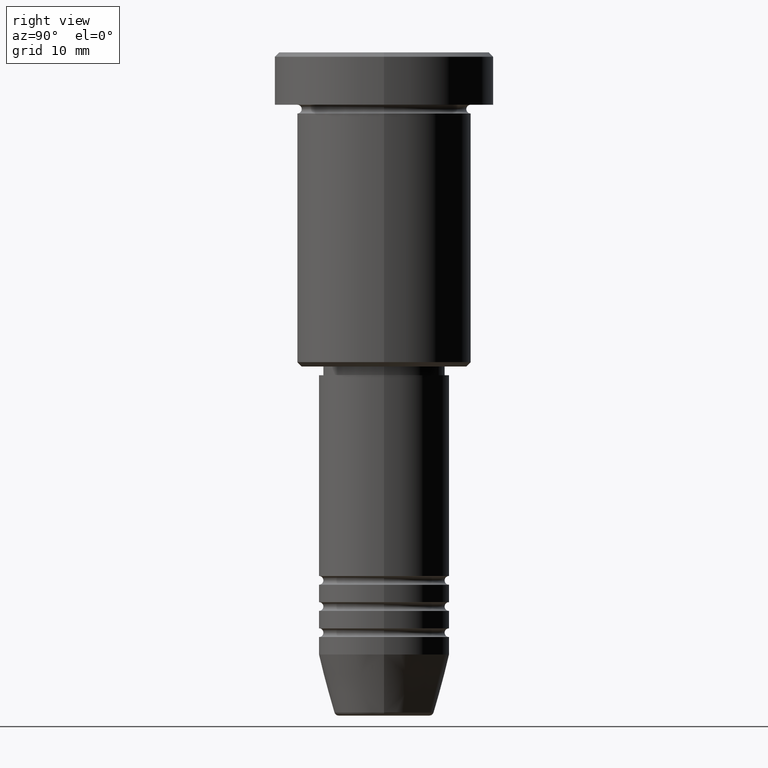
[diagram: clean part render]
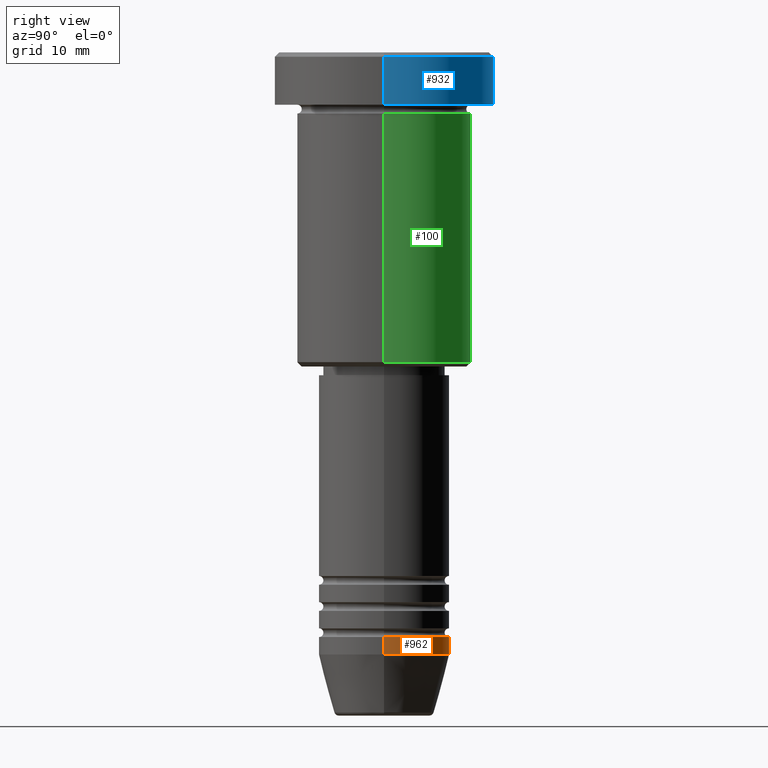
[diagram: same view with three faces highlighted in distinct colors, each labeled with its STEP entity id]
A machine part, right view with three faces highlighted in distinct colors.
Their STEP definitions:

[orange] entity #962 — the highlighted cylindrical surface (partial cylindrical patch) has radius 7.5 mm, axis along (-0, -0, 1).
#53 = FACE_OUTER_BOUND ( 'NONE', #652, .T. ) ;
#96 = CIRCLE ( 'NONE', #803, 7.500000000000000000 ) ;
#150 = VERTEX_POINT ( 'NONE', #1065 ) ;
#156 = CYLINDRICAL_SURFACE ( 'NONE', #402, 7.500000000000000000 ) ;
#214 = ORIENTED_EDGE ( 'NONE', *, *, #786, .F. ) ;
#295 = ORIENTED_EDGE ( 'NONE', *, *, #533, .T. ) ;
#298 = ORIENTED_EDGE ( 'NONE', *, *, #596, .F. ) ;
#303 = CIRCLE ( 'NONE', #453, 7.500000000000000000 ) ;
#384 = DIRECTION ( 'NONE',  ( -0.000000000000000000, -0.000000000000000000, 1.000000000000000000 ) ) ;
#390 = CARTESIAN_POINT ( 'NONE',  ( 7.500000000000000000, 0.000000000000000000, 0.000000000000000000 ) ) ;
#402 = AXIS2_PLACEMENT_3D ( 'NONE', #438, #974, #808 ) ;
#408 = DIRECTION ( 'NONE',  ( 1.000000000000000000, 0.000000000000000000, 0.000000000000000000 ) ) ;
#426 = VERTEX_POINT ( 'NONE', #638 ) ;
#438 = CARTESIAN_POINT ( 'NONE',  ( 0.000000000000000000, 0.000000000000000000, 0.000000000000000000 ) ) ;
#453 = AXIS2_PLACEMENT_3D ( 'NONE', #664, #760, #408 ) ;
#480 = LINE ( 'NONE', #390, #1131 ) ;
#533 = EDGE_CURVE ( 'NONE', #802, #426, #1004, .T. ) ;
#559 = DIRECTION ( 'NONE',  ( -0.000000000000000000, -0.000000000000000000, 1.000000000000000000 ) ) ;
#573 = CARTESIAN_POINT ( 'NONE',  ( 0.000000000000000000, 0.000000000000000000, -67.00000000000000000 ) ) ;
#596 = EDGE_CURVE ( 'NONE', #150, #1081, #480, .T. ) ;
#632 = CARTESIAN_POINT ( 'NONE',  ( -7.500000000000000000, 9.184850993605147944E-16, 0.000000000000000000 ) ) ;
#638 = CARTESIAN_POINT ( 'NONE',  ( -7.500000000000000000, 9.184850993605147944E-16, -67.00000000000000000 ) ) ;
#652 = EDGE_LOOP ( 'NONE', ( #735, #295, #214, #298 ) ) ;
#664 = CARTESIAN_POINT ( 'NONE',  ( 0.000000000000000000, 0.000000000000000000, -69.00000000000000000 ) ) ;
#735 = ORIENTED_EDGE ( 'NONE', *, *, #765, .T. ) ;
#760 = DIRECTION ( 'NONE',  ( -0.000000000000000000, -0.000000000000000000, 1.000000000000000000 ) ) ;
#765 = EDGE_CURVE ( 'NONE', #150, #802, #303, .T. ) ;
#786 = EDGE_CURVE ( 'NONE', #1081, #426, #96, .T. ) ;
#802 = VERTEX_POINT ( 'NONE', #1112 ) ;
#803 = AXIS2_PLACEMENT_3D ( 'NONE', #573, #384, #1122 ) ;
#808 = DIRECTION ( 'NONE',  ( 1.000000000000000000, 0.000000000000000000, 0.000000000000000000 ) ) ;
#871 = VECTOR ( 'NONE', #559, 1000.000000000000000 ) ;
#930 = DIRECTION ( 'NONE',  ( -0.000000000000000000, -0.000000000000000000, 1.000000000000000000 ) ) ;
#962 = ADVANCED_FACE ( 'NONE', ( #53 ), #156, .T. ) ;
#974 = DIRECTION ( 'NONE',  ( -0.000000000000000000, -0.000000000000000000, 1.000000000000000000 ) ) ;
#1004 = LINE ( 'NONE', #632, #871 ) ;
#1065 = CARTESIAN_POINT ( 'NONE',  ( 7.500000000000000000, 0.000000000000000000, -69.00000000000000000 ) ) ;
#1081 = VERTEX_POINT ( 'NONE', #1173 ) ;
#1112 = CARTESIAN_POINT ( 'NONE',  ( -7.500000000000000000, 9.184850993605147944E-16, -69.00000000000000000 ) ) ;
#1122 = DIRECTION ( 'NONE',  ( 1.000000000000000000, 0.000000000000000000, 0.000000000000000000 ) ) ;
#1131 = VECTOR ( 'NONE', #930, 1000.000000000000000 ) ;
#1173 = CARTESIAN_POINT ( 'NONE',  ( 7.500000000000000000, 0.000000000000000000, -67.00000000000000000 ) ) ;

[blue] entity #932 — the highlighted cylindrical surface (partial cylindrical patch) has radius 12.5 mm, axis along (-0, -0, 1).
#34 = VERTEX_POINT ( 'NONE', #1003 ) ;
#47 = ORIENTED_EDGE ( 'NONE', *, *, #382, .F. ) ;
#62 = CARTESIAN_POINT ( 'NONE',  ( 12.50000000000000000, 0.000000000000000000, 0.000000000000000000 ) ) ;
#66 = CARTESIAN_POINT ( 'NONE',  ( -12.50000000000000000, 1.530808498934191521E-15, -0.4999999999999987232 ) ) ;
#148 = CARTESIAN_POINT ( 'NONE',  ( -12.50000000000000000, 1.530808498934191521E-15, 0.000000000000000000 ) ) ;
#177 = EDGE_CURVE ( 'NONE', #34, #1006, #252, .T. ) ;
#233 = VECTOR ( 'NONE', #876, 1000.000000000000000 ) ;
#252 = LINE ( 'NONE', #148, #233 ) ;
#305 = ORIENTED_EDGE ( 'NONE', *, *, #177, .T. ) ;
#331 = DIRECTION ( 'NONE',  ( 1.000000000000000000, 0.000000000000000000, 0.000000000000000000 ) ) ;
#338 = CARTESIAN_POINT ( 'NONE',  ( 0.000000000000000000, 0.000000000000000000, -0.4999999999999987232 ) ) ;
#350 = DIRECTION ( 'NONE',  ( 1.000000000000000000, 0.000000000000000000, 0.000000000000000000 ) ) ;
#362 = EDGE_CURVE ( 'NONE', #543, #34, #561, .T. ) ;
#382 = EDGE_CURVE ( 'NONE', #543, #948, #516, .T. ) ;
#389 = EDGE_CURVE ( 'NONE', #1006, #948, #1046, .T. ) ;
#411 = CARTESIAN_POINT ( 'NONE',  ( 12.50000000000000000, 0.000000000000000000, -5.999999999999996447 ) ) ;
#412 = CYLINDRICAL_SURFACE ( 'NONE', #896, 12.50000000000000000 ) ;
#418 = FACE_OUTER_BOUND ( 'NONE', #515, .T. ) ;
#419 = ORIENTED_EDGE ( 'NONE', *, *, #362, .T. ) ;
#425 = CARTESIAN_POINT ( 'NONE',  ( 12.50000000000000000, 0.000000000000000000, -0.4999999999999987232 ) ) ;
#428 = DIRECTION ( 'NONE',  ( -0.000000000000000000, -0.000000000000000000, 1.000000000000000000 ) ) ;
#431 = DIRECTION ( 'NONE',  ( 0.000000000000000000, 0.000000000000000000, -1.000000000000000000 ) ) ;
#515 = EDGE_LOOP ( 'NONE', ( #419, #305, #944, #47 ) ) ;
#516 = LINE ( 'NONE', #62, #755 ) ;
#543 = VERTEX_POINT ( 'NONE', #411 ) ;
#561 = CIRCLE ( 'NONE', #833, 12.50000000000000000 ) ;
#608 = DIRECTION ( 'NONE',  ( -0.000000000000000000, -0.000000000000000000, 1.000000000000000000 ) ) ;
#621 = CARTESIAN_POINT ( 'NONE',  ( 0.000000000000000000, 0.000000000000000000, 0.000000000000000000 ) ) ;
#755 = VECTOR ( 'NONE', #428, 1000.000000000000000 ) ;
#833 = AXIS2_PLACEMENT_3D ( 'NONE', #1050, #608, #350 ) ;
#876 = DIRECTION ( 'NONE',  ( -0.000000000000000000, -0.000000000000000000, 1.000000000000000000 ) ) ;
#878 = DIRECTION ( 'NONE',  ( -0.000000000000000000, -0.000000000000000000, 1.000000000000000000 ) ) ;
#896 = AXIS2_PLACEMENT_3D ( 'NONE', #621, #878, #331 ) ;
#932 = ADVANCED_FACE ( 'NONE', ( #418 ), #412, .T. ) ;
#944 = ORIENTED_EDGE ( 'NONE', *, *, #389, .T. ) ;
#948 = VERTEX_POINT ( 'NONE', #425 ) ;
#968 = AXIS2_PLACEMENT_3D ( 'NONE', #338, #431, #1061 ) ;
#1003 = CARTESIAN_POINT ( 'NONE',  ( -12.50000000000000000, 1.530808498934191521E-15, -5.999999999999996447 ) ) ;
#1006 = VERTEX_POINT ( 'NONE', #66 ) ;
#1046 = CIRCLE ( 'NONE', #968, 12.50000000000000000 ) ;
#1050 = CARTESIAN_POINT ( 'NONE',  ( 0.000000000000000000, 0.000000000000000000, -5.999999999999996447 ) ) ;
#1061 = DIRECTION ( 'NONE',  ( 1.000000000000000000, 0.000000000000000000, 0.000000000000000000 ) ) ;

[green] entity #100 — the highlighted cylindrical surface (partial cylindrical patch) has radius 10 mm, axis along (-0, -0, 1).
#78 = EDGE_CURVE ( 'NONE', #888, #818, #1098, .T. ) ;
#100 = ADVANCED_FACE ( 'NONE', ( #837 ), #720, .T. ) ;
#178 = ORIENTED_EDGE ( 'NONE', *, *, #462, .T. ) ;
#183 = CARTESIAN_POINT ( 'NONE',  ( 0.000000000000000000, 0.000000000000000000, -6.999999999999996447 ) ) ;
#204 = CARTESIAN_POINT ( 'NONE',  ( 10.00000000000000000, 0.000000000000000000, -35.50000000000000711 ) ) ;
#211 = AXIS2_PLACEMENT_3D ( 'NONE', #643, #1099, #444 ) ;
#236 = VECTOR ( 'NONE', #1089, 1000.000000000000000 ) ;
#288 = LINE ( 'NONE', #922, #572 ) ;
#318 = EDGE_LOOP ( 'NONE', ( #433, #178, #744, #498 ) ) ;
#377 = DIRECTION ( 'NONE',  ( -0.000000000000000000, -0.000000000000000000, 1.000000000000000000 ) ) ;
#403 = AXIS2_PLACEMENT_3D ( 'NONE', #183, #377, #1011 ) ;
#423 = CARTESIAN_POINT ( 'NONE',  ( 0.000000000000000000, 0.000000000000000000, 0.000000000000000000 ) ) ;
#433 = ORIENTED_EDGE ( 'NONE', *, *, #496, .T. ) ;
#444 = DIRECTION ( 'NONE',  ( -1.000000000000000000, 0.000000000000000000, 0.000000000000000000 ) ) ;
#448 = EDGE_CURVE ( 'NONE', #818, #796, #494, .T. ) ;
#462 = EDGE_CURVE ( 'NONE', #923, #796, #288, .T. ) ;
#494 = CIRCLE ( 'NONE', #403, 10.00000000000000000 ) ;
#496 = EDGE_CURVE ( 'NONE', #888, #923, #782, .T. ) ;
#498 = ORIENTED_EDGE ( 'NONE', *, *, #78, .F. ) ;
#557 = CARTESIAN_POINT ( 'NONE',  ( 10.00000000000000000, 0.000000000000000000, 0.000000000000000000 ) ) ;
#572 = VECTOR ( 'NONE', #817, 1000.000000000000000 ) ;
#624 = DIRECTION ( 'NONE',  ( -0.000000000000000000, -0.000000000000000000, 1.000000000000000000 ) ) ;
#639 = AXIS2_PLACEMENT_3D ( 'NONE', #423, #624, #1069 ) ;
#643 = CARTESIAN_POINT ( 'NONE',  ( 0.000000000000000000, 0.000000000000000000, -35.50000000000000711 ) ) ;
#720 = CYLINDRICAL_SURFACE ( 'NONE', #639, 10.00000000000000000 ) ;
#744 = ORIENTED_EDGE ( 'NONE', *, *, #448, .F. ) ;
#782 = CIRCLE ( 'NONE', #211, 10.00000000000000000 ) ;
#796 = VERTEX_POINT ( 'NONE', #1118 ) ;
#817 = DIRECTION ( 'NONE',  ( -0.000000000000000000, -0.000000000000000000, 1.000000000000000000 ) ) ;
#818 = VERTEX_POINT ( 'NONE', #849 ) ;
#837 = FACE_OUTER_BOUND ( 'NONE', #318, .T. ) ;
#849 = CARTESIAN_POINT ( 'NONE',  ( 10.00000000000000000, 0.000000000000000000, -6.999999999999996447 ) ) ;
#888 = VERTEX_POINT ( 'NONE', #204 ) ;
#922 = CARTESIAN_POINT ( 'NONE',  ( -10.00000000000000000, 1.224646799147353256E-15, 0.000000000000000000 ) ) ;
#923 = VERTEX_POINT ( 'NONE', #1048 ) ;
#1011 = DIRECTION ( 'NONE',  ( 1.000000000000000000, 0.000000000000000000, 0.000000000000000000 ) ) ;
#1048 = CARTESIAN_POINT ( 'NONE',  ( -10.00000000000000000, 1.224646799147353256E-15, -35.50000000000000711 ) ) ;
#1069 = DIRECTION ( 'NONE',  ( 1.000000000000000000, 0.000000000000000000, 0.000000000000000000 ) ) ;
#1089 = DIRECTION ( 'NONE',  ( -0.000000000000000000, -0.000000000000000000, 1.000000000000000000 ) ) ;
#1098 = LINE ( 'NONE', #557, #236 ) ;
#1099 = DIRECTION ( 'NONE',  ( -0.000000000000000000, -0.000000000000000000, 1.000000000000000000 ) ) ;
#1118 = CARTESIAN_POINT ( 'NONE',  ( -10.00000000000000000, 1.224646799147353256E-15, -6.999999999999996447 ) ) ;